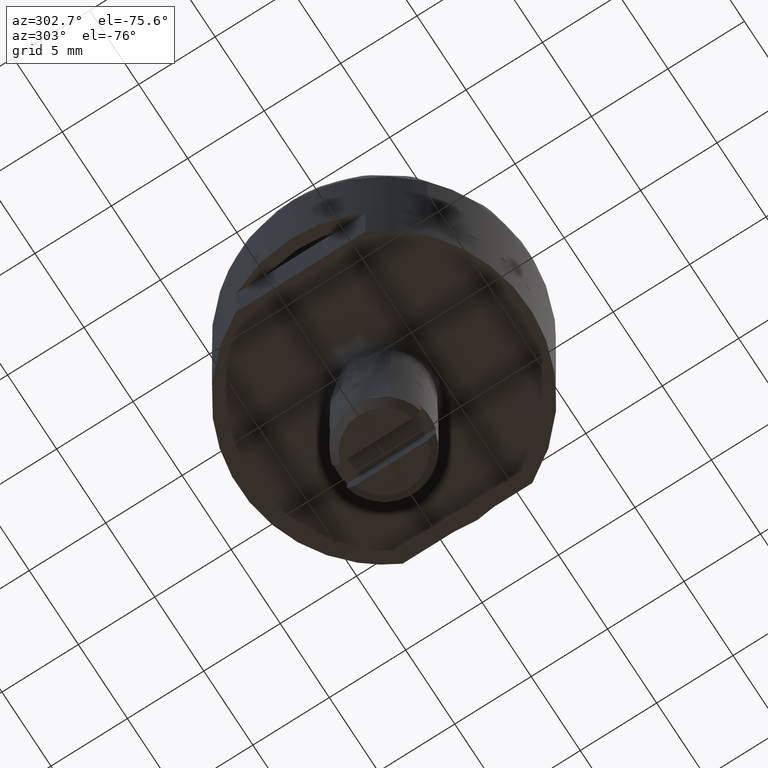
[diagram: clean part render]
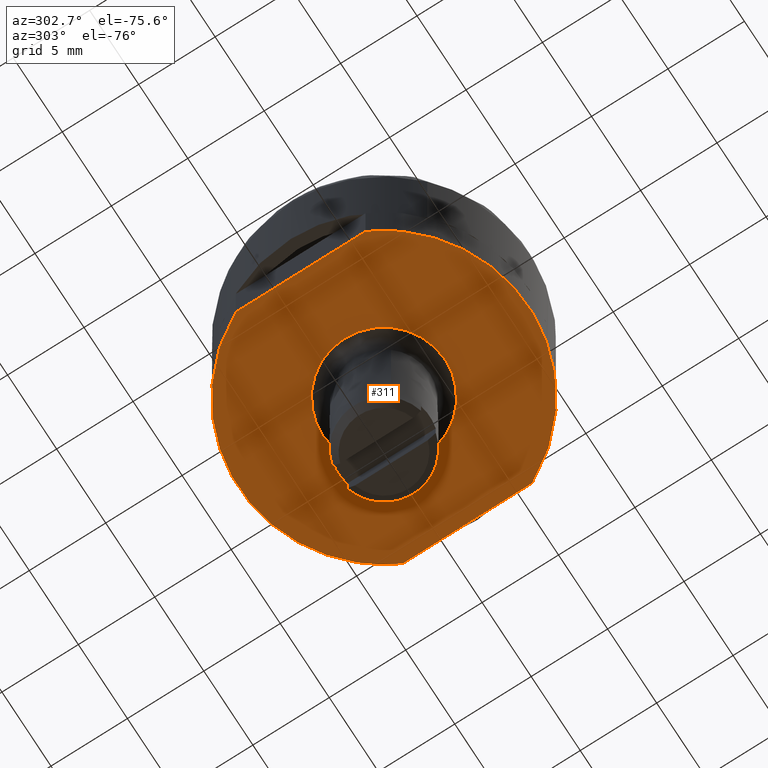
[diagram: same view with one face highlighted and labeled with its STEP entity id]
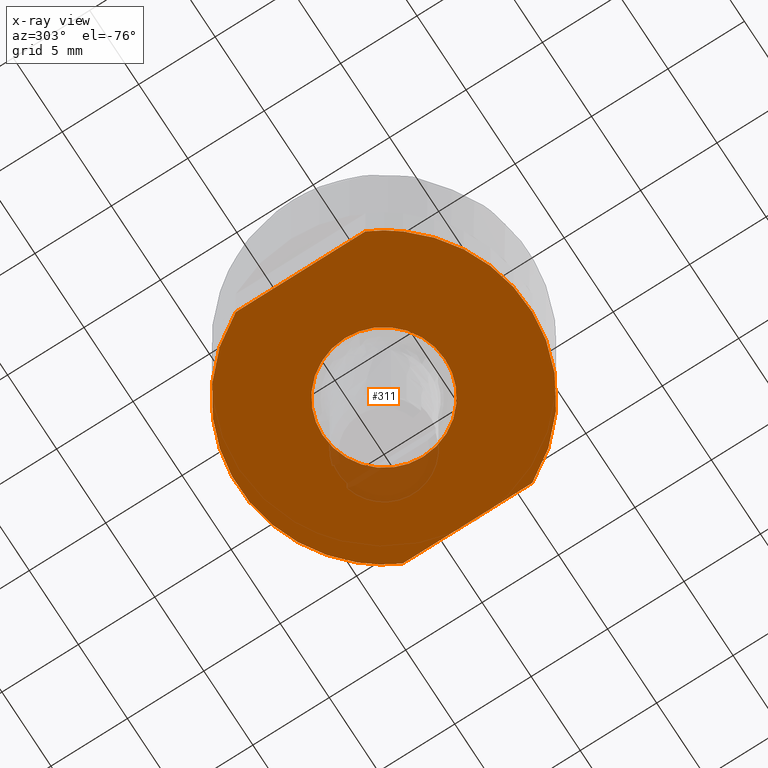
[diagram: x-ray of the same camera — body ghosted, the highlighted face saturated]
A machine part, auxiliary view. The second image highlights one B-rep face of the part: STEP entity #311.
The next image is the same camera in x-ray: the body ghosted, the highlighted face saturated — about 5% of this face is hidden behind the body in this view.
In plain terms, the highlighted face is a freeform B-spline surface patch.
Its self-contained STEP definition (entity closure, byte-faithful):
#91=CARTESIAN_POINT('',(8.499999999999831,-4.242640687119274,-4.0));
#92=VERTEX_POINT('',#91);
#93=CARTESIAN_POINT('',(-8.500000000000000,-4.242640687119335,-4.0));
#94=VERTEX_POINT('',#93);
#95=CARTESIAN_POINT('',(8.499999999999831,-4.242640687119274,-4.0));
#96=CARTESIAN_POINT('',(8.304176926162263,-4.635003108968939,-3.999999999999996));
#97=CARTESIAN_POINT('',(7.858053793629418,-5.392541625076808,-4.000000000000008));
#98=CARTESIAN_POINT('',(6.970189941272985,-6.511759714113687,-3.999999999999987));
#99=CARTESIAN_POINT('',(5.958421785423314,-7.443626390718534,-4.000000000000011));
#100=CARTESIAN_POINT('',(4.777730568034984,-8.246523419652448,-3.999999999999981));
#101=CARTESIAN_POINT('',(3.643883592059712,-8.806464245853553,-4.000000000000012));
#102=CARTESIAN_POINT('',(2.236533621170059,-9.273255604988169,-3.999999999999968));
#103=CARTESIAN_POINT('',(0.932849035472549,-9.489596613302750,-4.000000000000062));
#104=CARTESIAN_POINT('',(-0.466622040539474,-9.513772807966916,-3.999999999999937));
#105=CARTESIAN_POINT('',(-1.641417766836344,-9.386189768521263,-4.000000000000026));
#106=CARTESIAN_POINT('',(-3.000863979043311,-9.050156159142622,-3.999999999999992));
#107=CARTESIAN_POINT('',(-4.247912512749844,-8.538322174455363,-4.000000000000004));
#108=CARTESIAN_POINT('',(-5.401561906280959,-7.845276856134955,-4.0));
#109=CARTESIAN_POINT('',(-6.286450108495231,-7.149332078708064,-3.999999999999989));
#110=CARTESIAN_POINT('',(-7.067690680989186,-6.378101739478137,-4.000000000000058));
#111=CARTESIAN_POINT('',(-7.826735631769546,-5.438175123769091,-3.999999999999849));
#112=CARTESIAN_POINT('',(-8.279709769348065,-4.684058815114103,-4.000000000000096));
#113=CARTESIAN_POINT('',(-8.500000000000000,-4.242640687119335,-4.0));
#114=B_SPLINE_CURVE_WITH_KNOTS('',3,(#95,#96,#97,#98,#99,#100,#101,#102,#103,#104,#105,#106,#107,#108,#109,#110,#111,#112,#113),.UNSPECIFIED.,.F.,.U.,(4,1,1,1,1,1,1,1,1,1,1,1,1,1,1,1,4),(0.000000011578550,1.315545837090703,2.631127594099734,4.275588571896993,5.426711054614930,6.906730344830370,8.057846734443340,9.866756494294215,10.853414456105581,12.251204390463810,13.402316517696770,15.046782887120161,16.280129771483988,17.431258058229719,18.417925418151491,19.569056985721680,21.049056074928391),.UNSPECIFIED.);
#115=EDGE_CURVE('',#92,#94,#114,.T.);
#136=CARTESIAN_POINT('',(-8.500000000000000,4.242640687119344,-4.0));
#137=VERTEX_POINT('',#136);
#138=CARTESIAN_POINT('',(-8.500000000000000,4.242640687119344,-4.0));
#139=CARTESIAN_POINT('',(-8.500000000000000,-4.242640687119335,-4.0));
#140=QUASI_UNIFORM_CURVE('',1,(#138,#139),.UNSPECIFIED.,.F.,.U.);
#141=EDGE_CURVE('',#137,#94,#140,.T.);
#167=CARTESIAN_POINT('',(8.499999999999831,4.242640687119325,-4.0));
#168=VERTEX_POINT('',#167);
#169=CARTESIAN_POINT('',(-8.500000000000000,4.242640687119344,-4.0));
#170=CARTESIAN_POINT('',(-8.328649236479466,4.585953414297459,-3.999999999999997));
#171=CARTESIAN_POINT('',(-7.916823367126010,5.299355753535532,-4.000000000000008));
#172=CARTESIAN_POINT('',(-7.215425729719546,6.215579236237514,-3.999999999999985));
#173=CARTESIAN_POINT('',(-6.332490482395667,7.117924278376901,-4.000000000000019));
#174=CARTESIAN_POINT('',(-5.338504733822020,7.899680374809824,-3.999999999999969));
#175=CARTESIAN_POINT('',(-4.241321295944631,8.526839097791870,-4.000000000000048));
#176=CARTESIAN_POINT('',(-3.128203984040570,8.995006121417845,-3.999999999999933));
#177=CARTESIAN_POINT('',(-2.071151900574200,9.295491033359841,-4.000000000000044));
#178=CARTESIAN_POINT('',(-0.878218581597506,9.482851642762554,-3.999999999999989));
#179=CARTESIAN_POINT('',(0.357335368794651,9.525667522847188,-4.000000000000004));
#180=CARTESIAN_POINT('',(1.586776255015558,9.392119484800562,-3.999999999999999));
#181=CARTESIAN_POINT('',(2.734809566908955,9.118826844009591,-3.999999999999990));
#182=CARTESIAN_POINT('',(3.948799652464958,8.680986392813125,-3.999999999999984));
#183=CARTESIAN_POINT('',(5.085362452127057,8.063487606144038,-4.000000000000050));
#184=CARTESIAN_POINT('',(6.251651643867637,7.194267347592065,-3.999999999999977));
#185=CARTESIAN_POINT('',(7.426369195381891,6.034704097427876,-3.999999999999991));
#186=CARTESIAN_POINT('',(8.157433261998866,4.929362578240638,-4.000000000000055));
#187=CARTESIAN_POINT('',(8.499999999999831,4.242640687119325,-4.0));
#188=B_SPLINE_CURVE_WITH_KNOTS('',3,(#169,#170,#171,#172,#173,#174,#175,#176,#177,#178,#179,#180,#181,#182,#183,#184,#185,#186,#187),.UNSPECIFIED.,.F.,.U.,(4,1,1,1,1,1,1,1,1,1,1,1,1,1,1,1,4),(0.000000011583953,1.151099781364817,2.466685672435002,3.453351746246089,4.933371382124989,6.248940470151055,7.235623429922157,8.551183238801990,9.537865620928859,10.853414456107410,12.251204390465359,13.237870136265620,14.389002869199100,16.115684365698939,17.102365050803002,18.746820183081731,21.049056074928469),.UNSPECIFIED.);
#189=EDGE_CURVE('',#137,#168,#188,.T.);
#206=CARTESIAN_POINT('',(8.499999999999831,-4.242640687119274,-4.0));
#207=CARTESIAN_POINT('',(8.499999999999831,4.242640687119325,-4.0));
#208=QUASI_UNIFORM_CURVE('',1,(#206,#207),.UNSPECIFIED.,.F.,.U.);
#209=EDGE_CURVE('',#92,#168,#208,.T.);
#217=CARTESIAN_POINT('',(-9.349149967050693,-10.449069693075920,-4.0));
#218=CARTESIAN_POINT('',(9.349150423026057,-10.449069693075920,-4.0));
#219=CARTESIAN_POINT('',(-9.349149967050693,10.449049987780430,-4.0));
#220=CARTESIAN_POINT('',(9.349150423026057,10.449049987780430,-4.0));
#221=B_SPLINE_SURFACE_WITH_KNOTS('',1,1,((#217,#219),(#218,#220)),.UNSPECIFIED.,.F.,.F.,.U.,(2,2),(2,2),(0.0,18.698300390076749),(0.0,20.898119680856340),.UNSPECIFIED.);
#222=ORIENTED_EDGE('',*,*,#209,.F.);
#223=ORIENTED_EDGE('',*,*,#115,.T.);
#224=ORIENTED_EDGE('',*,*,#141,.F.);
#225=ORIENTED_EDGE('',*,*,#189,.T.);
#226=EDGE_LOOP('',(#222,#223,#224,#225));
#227=FACE_OUTER_BOUND('',#226,.T.);
#228=CARTESIAN_POINT('',(-3.999684176706512,-0.050264159589829,-4.0));
#229=VERTEX_POINT('',#228);
#230=CARTESIAN_POINT('',(-3.999999999999895,0.0,-4.0));
#231=VERTEX_POINT('',#230);
#232=CARTESIAN_POINT('',(-3.999684176706512,-0.050264159589829,-4.0));
#233=CARTESIAN_POINT('',(-3.999999999999895,0.0,-4.0));
#234=QUASI_UNIFORM_CURVE('',1,(#232,#233),.UNSPECIFIED.,.F.,.U.);
#235=EDGE_CURVE('',#229,#231,#234,.T.);
#236=ORIENTED_EDGE('',*,*,#235,.F.);
#237=CARTESIAN_POINT('',(0.025113217130823,-3.999921165013354,-4.0));
#238=VERTEX_POINT('',#237);
#239=CARTESIAN_POINT('',(0.025113217130823,-3.999921165013354,-4.0));
#240=CARTESIAN_POINT('',(-0.268229603343835,-4.001818645203082,-4.000000000000003));
#241=CARTESIAN_POINT('',(-0.773752417886640,-3.949098872304659,-4.000000000000001));
#242=CARTESIAN_POINT('',(-1.431088338773613,-3.750656236504605,-4.000000000000004));
#243=CARTESIAN_POINT('',(-1.977919264586882,-3.493315284473641,-3.999999999999996));
#244=CARTESIAN_POINT('',(-2.440861807603806,-3.185671878543664,-4.000000000000003));
#245=CARTESIAN_POINT('',(-2.928818913750830,-2.751576870217041,-3.999999999999986));
#246=CARTESIAN_POINT('',(-3.350566775968357,-2.228682109413116,-4.000000000000006));
#247=CARTESIAN_POINT('',(-3.665699690441402,-1.636703513822931,-4.000000000000007));
#248=CARTESIAN_POINT('',(-3.918021872283279,-0.929286031096212,-3.999999999999957));
#249=CARTESIAN_POINT('',(-3.995310176793943,-0.408786076529062,-4.000000000000019));
#250=CARTESIAN_POINT('',(-3.999684176706512,-0.050264159589829,-4.0));
#251=B_SPLINE_CURVE_WITH_KNOTS('',3,(#239,#240,#241,#242,#243,#244,#245,#246,#247,#248,#249,#250),.UNSPECIFIED.,.F.,.U.,(4,1,1,1,1,1,1,1,1,4),(0.000000020608196,0.880039359101665,1.515626438034632,2.053433811660948,2.689023427887652,3.177921710347817,4.009073052061750,4.693554124429555,5.182471133491109,6.258072159470091),.UNSPECIFIED.);
#252=EDGE_CURVE('',#238,#229,#251,.T.);
#253=ORIENTED_EDGE('',*,*,#252,.F.);
#254=CARTESIAN_POINT('',(3.999999999999895,0.0,-4.0));
#255=VERTEX_POINT('',#254);
#256=CARTESIAN_POINT('',(3.999999999999895,0.0,-4.0));
#257=CARTESIAN_POINT('',(4.000011487204468,-0.211858197171324,-4.000000000000004));
#258=CARTESIAN_POINT('',(3.963675186569808,-0.668174996846724,-3.999999999999999));
#259=CARTESIAN_POINT('',(3.801366251111673,-1.302357886657356,-4.000000000000004));
#260=CARTESIAN_POINT('',(3.511093463435341,-1.960180480555266,-3.999999999999991));
#261=CARTESIAN_POINT('',(3.135783892877423,-2.517343188604309,-4.000000000000020));
#262=CARTESIAN_POINT('',(2.669340800332390,-2.998283196627325,-3.999999999999993));
#263=CARTESIAN_POINT('',(2.111737461987701,-3.425855441412603,-3.999999999999999));
#264=CARTESIAN_POINT('',(1.466363540037550,-3.749350847606229,-4.0));
#265=CARTESIAN_POINT('',(0.725594258379771,-3.953552075147202,-4.000000000000002));
#266=CARTESIAN_POINT('',(0.269562666305738,-3.998410149192148,-4.0));
#267=CARTESIAN_POINT('',(0.025113217130823,-3.999921165013354,-4.0));
#268=B_SPLINE_CURVE_WITH_KNOTS('',3,(#256,#257,#258,#259,#260,#261,#262,#263,#264,#265,#266,#267),.UNSPECIFIED.,.F.,.U.,(4,1,1,1,1,1,1,1,1,4),(0.000000020606749,0.635578115841638,1.368960318802409,1.955664402683751,2.786828347091484,3.373497688811169,3.960203806593327,4.889149345669212,5.524748490525515,6.258110878584608),.UNSPECIFIED.);
#269=EDGE_CURVE('',#255,#238,#268,.T.);
#270=ORIENTED_EDGE('',*,*,#269,.F.);
#271=CARTESIAN_POINT('',(3.999684176706512,0.050264159589830,-4.0));
#272=VERTEX_POINT('',#271);
#273=CARTESIAN_POINT('',(3.999684176706512,0.050264159589830,-4.0));
#274=CARTESIAN_POINT('',(3.999999999999895,0.0,-4.0));
#275=QUASI_UNIFORM_CURVE('',1,(#273,#274),.UNSPECIFIED.,.F.,.U.);
#276=EDGE_CURVE('',#272,#255,#275,.T.);
#277=ORIENTED_EDGE('',*,*,#276,.F.);
#278=CARTESIAN_POINT('',(-0.025113217130859,3.999921165013354,-4.0));
#279=VERTEX_POINT('',#278);
#280=CARTESIAN_POINT('',(-0.025113217130859,3.999921165013354,-4.0));
#281=CARTESIAN_POINT('',(0.333427734593558,4.002295598073462,-4.000000000000007));
#282=CARTESIAN_POINT('',(0.871597069044385,3.932730624960154,-4.0));
#283=CARTESIAN_POINT('',(1.628824227160225,3.673483047135700,-3.999999999999998));
#284=CARTESIAN_POINT('',(2.162017161513323,3.385754530669681,-3.999999999999995));
#285=CARTESIAN_POINT('',(2.680444747487122,2.988547715780304,-4.000000000000007));
#286=CARTESIAN_POINT('',(3.101911382435731,2.554239769086080,-3.999999999999965));
#287=CARTESIAN_POINT('',(3.446115637058759,2.056835003460478,-4.000000000000061));
#288=CARTESIAN_POINT('',(3.738902193053930,1.473030304034496,-3.999999999999961));
#289=CARTESIAN_POINT('',(3.942133525006871,0.815556289824354,-4.000000000000014));
#290=CARTESIAN_POINT('',(3.996631132279298,0.294695984343468,-3.999999999999998));
#291=CARTESIAN_POINT('',(3.999684176706512,0.050264159589830,-4.0));
#292=B_SPLINE_CURVE_WITH_KNOTS('',3,(#280,#281,#282,#283,#284,#285,#286,#287,#288,#289,#290,#291),.UNSPECIFIED.,.F.,.U.,(4,1,1,1,1,1,1,1,1,4),(0.000000020608183,1.075600468484612,1.613409875567550,2.395678004020781,2.884595051931763,3.569050303782182,4.204637115367898,4.693554124429580,5.524714308618889,6.258072159470125),.UNSPECIFIED.);
#293=EDGE_CURVE('',#279,#272,#292,.T.);
#294=ORIENTED_EDGE('',*,*,#293,.F.);
#295=CARTESIAN_POINT('',(-3.999999999999895,0.0,-4.0));
#296=CARTESIAN_POINT('',(-4.000090031968212,0.325948847687561,-4.000000000000004));
#297=CARTESIAN_POINT('',(-3.933869688579259,0.863702783438376,-3.999999999999993));
#298=CARTESIAN_POINT('',(-3.658140794080484,1.685152853181664,-4.000000000000007));
#299=CARTESIAN_POINT('',(-3.287466834818475,2.324282916346909,-3.999999999999993));
#300=CARTESIAN_POINT('',(-2.791104672592828,2.888793712602212,-4.000000000000020));
#301=CARTESIAN_POINT('',(-2.249018197876088,3.336936699456946,-3.999999999999977));
#302=CARTESIAN_POINT('',(-1.559307601044191,3.714924759528413,-4.000000000000037));
#303=CARTESIAN_POINT('',(-0.790750397823164,3.947175833731834,-3.999999999999973));
#304=CARTESIAN_POINT('',(-0.269562197804613,3.998406596089132,-4.000000000000014));
#305=CARTESIAN_POINT('',(-0.025113217130859,3.999921165013354,-4.0));
#306=B_SPLINE_CURVE_WITH_KNOTS('',3,(#295,#296,#297,#298,#299,#300,#301,#302,#303,#304,#305),.UNSPECIFIED.,.F.,.U.,(4,1,1,1,1,1,1,1,4),(0.000000020607250,0.977824134706844,1.613419857850286,2.591249696605779,3.177941372312315,3.862417837004665,4.693583163765064,5.524748490525496,6.258110878584575),.UNSPECIFIED.);
#307=EDGE_CURVE('',#231,#279,#306,.T.);
#308=ORIENTED_EDGE('',*,*,#307,.F.);
#309=EDGE_LOOP('',(#236,#253,#270,#277,#294,#308));
#310=FACE_BOUND('',#309,.T.);
#311=ADVANCED_FACE('',(#227,#310),#221,.F.);